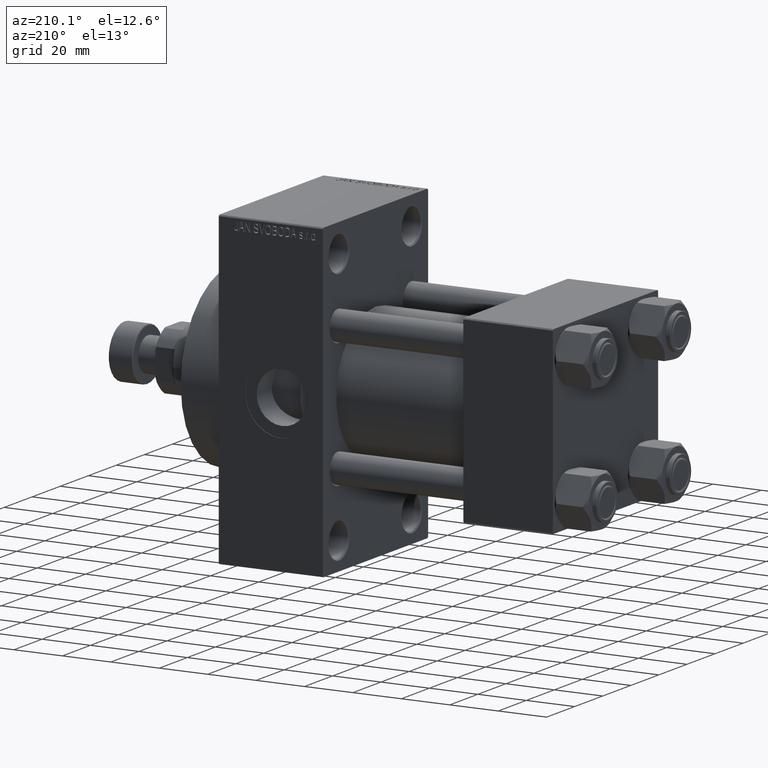
[diagram: clean part render]
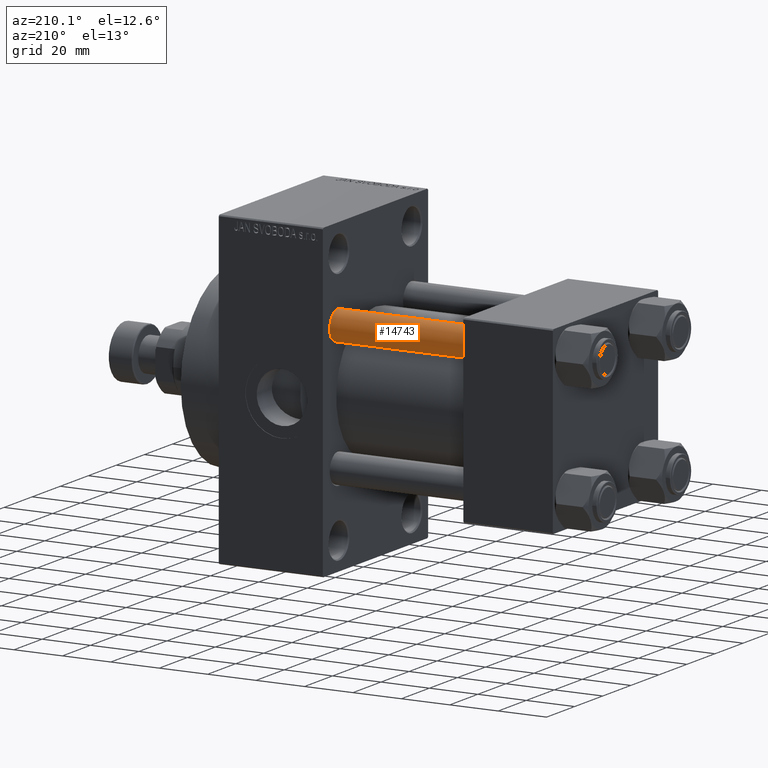
[diagram: same view with one face highlighted and labeled with its STEP entity id]
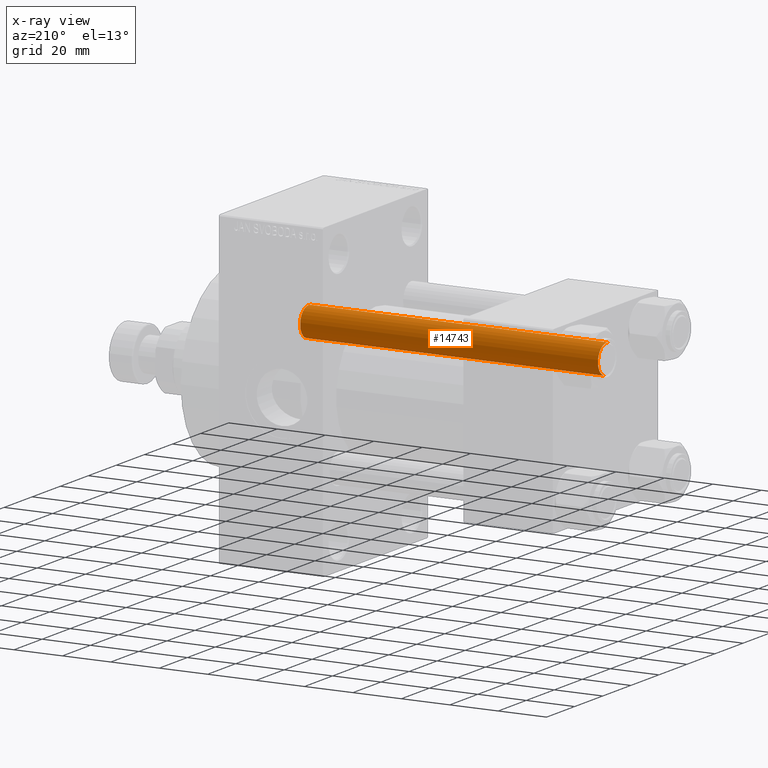
[diagram: x-ray of the same camera — body ghosted, the highlighted face saturated]
A machine part, auxiliary view. The second image highlights one B-rep face of the part: STEP entity #14743.
The next image is the same camera in x-ray: the body ghosted, the highlighted face saturated — about 0% of this face is hidden behind the body in this view.
In plain terms, the highlighted cylindrical surface (edge-blend (fillet) strip) has radius 6 mm, axis along (-1, -0, 0).
Its self-contained STEP definition (entity closure, byte-faithful):
#2651 = DIRECTION ( 'NONE',  ( -0.000000000000000000, -0.000000000000000000, -1.000000000000000000 ) ) ;
#3099 = DIRECTION ( 'NONE',  ( 0.000000000000000000, 0.000000000000000000, -1.000000000000000000 ) ) ;
#4222 = ORIENTED_EDGE ( 'NONE', *, *, #5398, .T. ) ;
#5398 = EDGE_CURVE ( 'NONE', #32393, #14427, #6597, .T. ) ;
#5707 = DIRECTION ( 'NONE',  ( -0.000000000000000000, -0.000000000000000000, -1.000000000000000000 ) ) ;
#6521 = LINE ( 'NONE', #10392, #25445 ) ;
#6597 = CIRCLE ( 'NONE', #28241, 6.000000000000000888 ) ;
#8851 = LINE ( 'NONE', #31609, #9837 ) ;
#9225 = AXIS2_PLACEMENT_3D ( 'NONE', #33249, #29840, #33967 ) ;
#9837 = VECTOR ( 'NONE', #5707, 1000.000000000000000 ) ;
#10392 = CARTESIAN_POINT ( 'NONE',  ( 6.000000000000000888, 7.347880794884120722E-16, 124.0000000000000000 ) ) ;
#10416 = EDGE_CURVE ( 'NONE', #32393, #40846, #8851, .T. ) ;
#11178 = DIRECTION ( 'NONE',  ( -0.000000000000000000, -0.000000000000000000, -1.000000000000000000 ) ) ;
#11908 = DIRECTION ( 'NONE',  ( -1.000000000000000000, 0.000000000000000000, 0.000000000000000000 ) ) ;
#12121 = ORIENTED_EDGE ( 'NONE', *, *, #15673, .T. ) ;
#13095 = CIRCLE ( 'NONE', #9225, 6.000000000000000888 ) ;
#13607 = FACE_OUTER_BOUND ( 'NONE', #14537, .T. ) ;
#14329 = CYLINDRICAL_SURFACE ( 'NONE', #33898, 6.000000000000000888 ) ;
#14427 = VERTEX_POINT ( 'NONE', #28691 ) ;
#14537 = EDGE_LOOP ( 'NONE', ( #4222, #39280, #12121, #35155 ) ) ;
#14743 = ADVANCED_FACE ( 'NONE', ( #13607 ), #14329, .T. ) ;
#15673 = EDGE_CURVE ( 'NONE', #45605, #40846, #13095, .T. ) ;
#18332 = CARTESIAN_POINT ( 'NONE',  ( 0.000000000000000000, 0.000000000000000000, 123.5000000000000426 ) ) ;
#21818 = CARTESIAN_POINT ( 'NONE',  ( -6.000000000000000888, 0.000000000000000000, 123.5000000000000426 ) ) ;
#25445 = VECTOR ( 'NONE', #2651, 1000.000000000000000 ) ;
#28241 = AXIS2_PLACEMENT_3D ( 'NONE', #18332, #3099, #33115 ) ;
#28691 = CARTESIAN_POINT ( 'NONE',  ( 6.000000000000000888, 7.347880794884120722E-16, 123.5000000000000426 ) ) ;
#29840 = DIRECTION ( 'NONE',  ( -0.000000000000000000, -0.000000000000000000, 1.000000000000000000 ) ) ;
#30495 = CARTESIAN_POINT ( 'NONE',  ( -6.000000000000000888, 0.000000000000000000, 0.4999999999999865663 ) ) ;
#31609 = CARTESIAN_POINT ( 'NONE',  ( -6.000000000000000888, 0.000000000000000000, 124.0000000000000000 ) ) ;
#32393 = VERTEX_POINT ( 'NONE', #21818 ) ;
#33115 = DIRECTION ( 'NONE',  ( 1.000000000000000000, 0.000000000000000000, 0.000000000000000000 ) ) ;
#33249 = CARTESIAN_POINT ( 'NONE',  ( 0.000000000000000000, 0.000000000000000000, 0.4999999999999865663 ) ) ;
#33898 = AXIS2_PLACEMENT_3D ( 'NONE', #43164, #11178, #11908 ) ;
#33967 = DIRECTION ( 'NONE',  ( 1.000000000000000000, 0.000000000000000000, 0.000000000000000000 ) ) ;
#35155 = ORIENTED_EDGE ( 'NONE', *, *, #10416, .F. ) ;
#35865 = CARTESIAN_POINT ( 'NONE',  ( 6.000000000000000888, 7.347880794884120722E-16, 0.4999999999999865663 ) ) ;
#39280 = ORIENTED_EDGE ( 'NONE', *, *, #39952, .T. ) ;
#39952 = EDGE_CURVE ( 'NONE', #14427, #45605, #6521, .T. ) ;
#40846 = VERTEX_POINT ( 'NONE', #30495 ) ;
#43164 = CARTESIAN_POINT ( 'NONE',  ( 0.000000000000000000, 0.000000000000000000, 124.0000000000000000 ) ) ;
#45605 = VERTEX_POINT ( 'NONE', #35865 ) ;